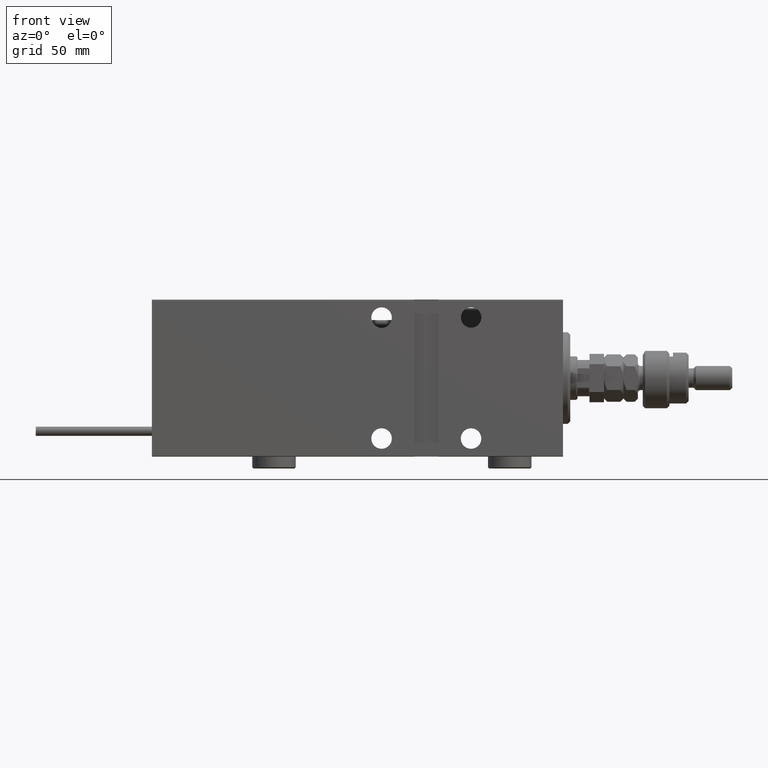
[diagram: clean part render]
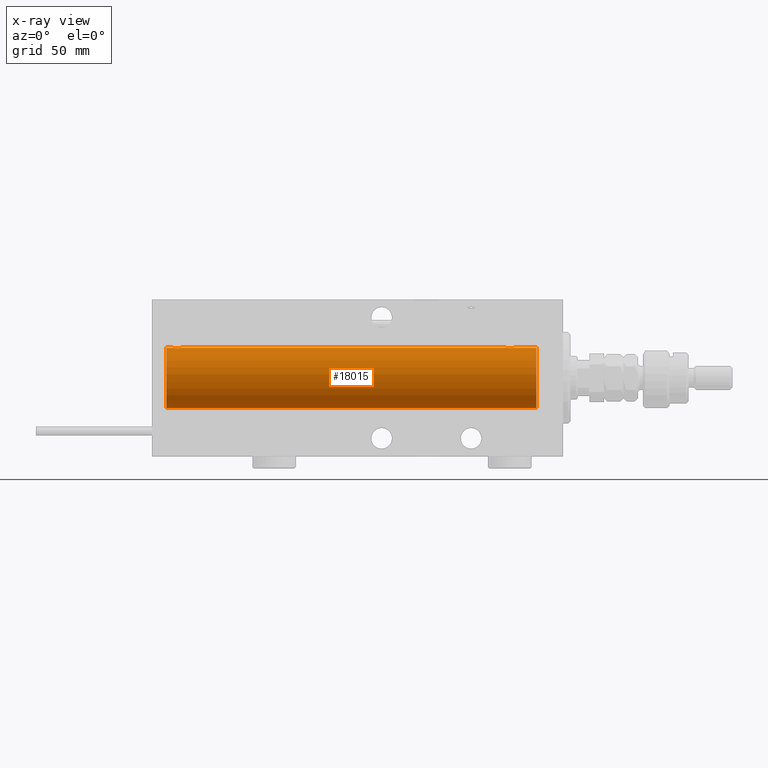
[diagram: x-ray — body ghosted, one internal face saturated and labeled with its STEP entity id]
A machine part, front view, then the same camera in x-ray: the body is ghosted and one INTERNAL B-rep face — a face not visible from any outside direction — is saturated and labeled: STEP entity #18015.
In plain terms, the highlighted cylindrical surface (edge-blend (fillet) strip) has radius 12.5 mm, axis along (1, 0, -0).
Its self-contained STEP definition (entity closure, byte-faithful):
#72 = CARTESIAN_POINT ( 'NONE',  ( 164.0000000000000000, 1.530808498934191521E-15, -12.50000000000000000 ) ) ;
#193 = CARTESIAN_POINT ( 'NONE',  ( 161.0903668000940741, 1.219754986802276342, 12.44082361696004035 ) ) ;
#1262 = CARTESIAN_POINT ( 'NONE',  ( 157.5000000000000000, -7.266434456262306043E-23, 12.50000000000000000 ) ) ;
#2262 = VECTOR ( 'NONE', #20187, 1000.000000000000000 ) ;
#2505 = CARTESIAN_POINT ( 'NONE',  ( 23.89747729701804957, 0.6455696738844942661, 12.48390768591463207 ) ) ;
#2512 = DIRECTION ( 'NONE',  ( 0.000000000000000000, 0.000000000000000000, 1.000000000000000000 ) ) ;
#2643 = CARTESIAN_POINT ( 'NONE',  ( 161.5000000000000000, 3.161822422844574965E-15, 12.50000000000000000 ) ) ;
#2758 = CARTESIAN_POINT ( 'NONE',  ( 20.10226968606341202, 0.6448065707252997880, 12.48394649977302073 ) ) ;
#3030 = CARTESIAN_POINT ( 'NONE',  ( 19.99999999999999645, -7.265724481447607133E-23, 12.50000000000000000 ) ) ;
#3175 = ORIENTED_EDGE ( 'NONE', *, *, #4537, .F. ) ;
#3749 = ORIENTED_EDGE ( 'NONE', *, *, #53599, .T. ) ;
#4425 = EDGE_CURVE ( 'NONE', #31412, #18435, #16465, .T. ) ;
#4533 = DIRECTION ( 'NONE',  ( 0.000000000000000000, 0.000000000000000000, 1.000000000000000000 ) ) ;
#4537 = EDGE_CURVE ( 'NONE', #30247, #47169, #36794, .T. ) ;
#4793 = CARTESIAN_POINT ( 'NONE',  ( 157.7025750808384146, 0.8868029758979328880, 12.46909283808506075 ) ) ;
#5063 = CARTESIAN_POINT ( 'NONE',  ( 157.5000000000000000, 0.1306394121199362379, 12.49999999999999822 ) ) ;
#5756 = CARTESIAN_POINT ( 'NONE',  ( 23.50601633672791380, 1.322451657002079450, 12.43019346654085133 ) ) ;
#6374 = ORIENTED_EDGE ( 'NONE', *, *, #16135, .F. ) ;
#6835 = CARTESIAN_POINT ( 'NONE',  ( 20.20257508083844300, 0.8868029758979374400, 12.46909283808506252 ) ) ;
#7098 = CARTESIAN_POINT ( 'NONE',  ( 20.67897166499301775, 1.507394620545638997, 12.40913174964213717 ) ) ;
#7368 = CARTESIAN_POINT ( 'NONE',  ( 21.35584766229707654, 1.897967064543088389, 12.35517291625592406 ) ) ;
#9524 = VECTOR ( 'NONE', #24651, 1000.000000000000000 ) ;
#9562 = CARTESIAN_POINT ( 'NONE',  ( 23.22966493873148863, 1.598680238462371284, 12.39873273758732175 ) ) ;
#9825 = CARTESIAN_POINT ( 'NONE',  ( 21.87007370639734205, 2.000049200055400433, 12.33895470450622867 ) ) ;
#10872 = CARTESIAN_POINT ( 'NONE',  ( 161.4869879148365044, 0.2624928479599930031, 12.49789934882883458 ) ) ;
#11112 = VERTEX_POINT ( 'NONE', #14630 ) ;
#11435 = CARTESIAN_POINT ( 'NONE',  ( 21.11343686466983982, 1.797558627508994533, 12.37018026341338484 ) ) ;
#11701 = CARTESIAN_POINT ( 'NONE',  ( 20.26529257602388867, 1.003863686549170353, 12.46009879577771429 ) ) ;
#12201 = AXIS2_PLACEMENT_3D ( 'NONE', #41740, #45828, #4533 ) ;
#12281 = CARTESIAN_POINT ( 'NONE',  ( 24.00000000000000000, -2.019790789754703983E-15, 12.50000000000000000 ) ) ;
#12295 = LINE ( 'NONE', #45446, #2262 ) ;
#12772 = VERTEX_POINT ( 'NONE', #12281 ) ;
#12931 = CARTESIAN_POINT ( 'NONE',  ( 157.7652925760238816, 1.003863686549162582, 12.46009879577771251 ) ) ;
#13197 = CARTESIAN_POINT ( 'NONE',  ( 158.4966418570081430, 1.734998657226758612, 12.37922086519035503 ) ) ;
#13629 = CARTESIAN_POINT ( 'NONE',  ( 23.59036680009405629, 1.219754986802283003, 12.44082361696003858 ) ) ;
#13735 = CARTESIAN_POINT ( 'NONE',  ( 158.8558476622970659, 1.897967064543079729, 12.35517291625592584 ) ) ;
#14630 = CARTESIAN_POINT ( 'NONE',  ( 11.00000000000001066, 1.530808498934191521E-15, -12.50000000000000000 ) ) ;
#14938 = CARTESIAN_POINT ( 'NONE',  ( 161.2355325543813365, 1.002494658017152984, 12.46021263690096958 ) ) ;
#15510 = CARTESIAN_POINT ( 'NONE',  ( 20.00000000000000000, 0.1306394121199368485, 12.50000000000000178 ) ) ;
#15517 = DIRECTION ( 'NONE',  ( -1.000000000000000000, -0.000000000000000000, -0.000000000000000000 ) ) ;
#15776 = CARTESIAN_POINT ( 'NONE',  ( 20.49266449635678100, 1.321095788880536137, 12.43034574091278266 ) ) ;
#15937 = ORIENTED_EDGE ( 'NONE', *, *, #4425, .T. ) ;
#16135 = EDGE_CURVE ( 'NONE', #47169, #11112, #41549, .T. ) ;
#16465 = B_SPLINE_CURVE_WITH_KNOTS ( 'NONE', 3,
 ( #32794, #16746, #10872, #52184, #53737, #28993, #14938, #193, #33325, #49911, #28195, #44752, #30059, #30585, #46336, #50177, #13735, #33593, #13197, #25730, #26243, #26517, #42269, #12931, #4793, #30324, #46872, #51241, #5063, #1262 ),
 .UNSPECIFIED., .F., .F.,
 ( 4, 2, 2, 2, 2, 2, 2, 2, 2, 2, 2, 2, 2, 2, 4 ),
 ( 3.071950061688775313E-18, 0.0003914362731607417992, 0.0007828725463214804541, 0.001174308819482218838, 0.001565745092642957005, 0.002348617638964492320, 0.003131490185286028068, 0.003522926458446796159, 0.003914362731607563817, 0.004305799004768332341, 0.004697235277929099999, 0.005088671551089867656, 0.005480107824250636181, 0.005871544097411402971, 0.006262980370572171496 ),
 .UNSPECIFIED. ) ;
#16542 = CIRCLE ( 'NONE', #12201, 12.50000000000000000 ) ;
#16746 = CARTESIAN_POINT ( 'NONE',  ( 161.5000000000000000, 0.1323736289504352515, 12.49999999999999822 ) ) ;
#17016 = LINE ( 'NONE', #49370, #9524 ) ;
#17573 = ORIENTED_EDGE ( 'NONE', *, *, #27366, .T. ) ;
#18015 = ADVANCED_FACE ( 'NONE', ( #48663 ), #48397, .F. ) ;
#18435 = VERTEX_POINT ( 'NONE', #30441 ) ;
#19046 = CARTESIAN_POINT ( 'NONE',  ( 23.73553255438137555, 1.002494658017160090, 12.46021263690097491 ) ) ;
#19363 = VERTEX_POINT ( 'NONE', #30251 ) ;
#20123 = CARTESIAN_POINT ( 'NONE',  ( 21.48062649148445047, 1.935814255713572019, 12.34922241902463469 ) ) ;
#20187 = DIRECTION ( 'NONE',  ( -1.000000000000000000, -0.000000000000000000, -0.000000000000000000 ) ) ;
#23793 = DIRECTION ( 'NONE',  ( -1.000000000000000000, 0.000000000000000000, 0.000000000000000000 ) ) ;
#24593 = EDGE_CURVE ( 'NONE', #18435, #12772, #12295, .T. ) ;
#24651 = DIRECTION ( 'NONE',  ( -1.000000000000000000, -0.000000000000000000, -0.000000000000000000 ) ) ;
#25730 = CARTESIAN_POINT ( 'NONE',  ( 158.2801920940542004, 1.590288205413967093, 12.39864157855465088 ) ) ;
#26243 = CARTESIAN_POINT ( 'NONE',  ( 158.1789716649930426, 1.507394620545631003, 12.40913174964213361 ) ) ;
#26517 = CARTESIAN_POINT ( 'NONE',  ( 157.9926644963567526, 1.321095788880528810, 12.43034574091277911 ) ) ;
#27366 = EDGE_CURVE ( 'NONE', #12772, #47874, #45395, .T. ) ;
#28195 = CARTESIAN_POINT ( 'NONE',  ( 160.5068312044749916, 1.747608771958137464, 12.37764291807175532 ) ) ;
#28993 = CARTESIAN_POINT ( 'NONE',  ( 161.2969921162861624, 0.8876934327478085418, 12.46903010196599482 ) ) ;
#30059 = CARTESIAN_POINT ( 'NONE',  ( 159.7621180633162226, 1.999901172190668985, 12.33897869807161207 ) ) ;
#30219 = CARTESIAN_POINT ( 'NONE',  ( 23.00683120447498808, 1.747608771958142793, 12.37764291807175709 ) ) ;
#30247 = VERTEX_POINT ( 'NONE', #53762 ) ;
#30251 = CARTESIAN_POINT ( 'NONE',  ( 11.00000000000001066, 0.000000000000000000, 12.50000000000000000 ) ) ;
#30324 = CARTESIAN_POINT ( 'NONE',  ( 157.6022696860634653, 0.6448065707252982337, 12.48394649977302251 ) ) ;
#30441 = CARTESIAN_POINT ( 'NONE',  ( 157.5000000000000000, -7.266434456262306043E-23, 12.50000000000000000 ) ) ;
#30481 = CARTESIAN_POINT ( 'NONE',  ( 23.79699211628617661, 0.8876934327478163134, 12.46903010196599837 ) ) ;
#30585 = CARTESIAN_POINT ( 'NONE',  ( 159.3700737063973349, 2.000049200055393772, 12.33895470450622867 ) ) ;
#31322 = CARTESIAN_POINT ( 'NONE',  ( 19.99999999999999645, -7.265724481447607133E-23, 12.50000000000000000 ) ) ;
#31346 = CARTESIAN_POINT ( 'NONE',  ( 164.0000000000000000, 0.000000000000000000, 12.50000000000000000 ) ) ;
#31412 = VERTEX_POINT ( 'NONE', #2643 ) ;
#31552 = CARTESIAN_POINT ( 'NONE',  ( 20.01309615233744665, 0.2633501011236107914, 12.49788564268284041 ) ) ;
#31823 = CARTESIAN_POINT ( 'NONE',  ( 20.41008591319372201, 1.220297236145719610, 12.44076681548080465 ) ) ;
#32794 = CARTESIAN_POINT ( 'NONE',  ( 161.5000000000000000, 3.161822422844574965E-15, 12.50000000000000000 ) ) ;
#33325 = CARTESIAN_POINT ( 'NONE',  ( 161.0060163367279245, 1.322451657002077452, 12.43019346654085666 ) ) ;
#33593 = CARTESIAN_POINT ( 'NONE',  ( 158.6134368646698363, 1.797558627508984319, 12.37018026341339194 ) ) ;
#34548 = CARTESIAN_POINT ( 'NONE',  ( 23.93604351777362993, 0.5184196815546091575, 12.48990118705761709 ) ) ;
#35882 = ORIENTED_EDGE ( 'NONE', *, *, #36247, .T. ) ;
#36247 = EDGE_CURVE ( 'NONE', #30247, #31412, #17016, .T. ) ;
#36268 = DIRECTION ( 'NONE',  ( 0.000000000000000000, 0.000000000000000000, 1.000000000000000000 ) ) ;
#36281 = VECTOR ( 'NONE', #37481, 1000.000000000000000 ) ;
#36794 = CIRCLE ( 'NONE', #50691, 12.50000000000000000 ) ;
#37080 = CARTESIAN_POINT ( 'NONE',  ( 164.0000000000000000, 0.000000000000000000, 0.000000000000000000 ) ) ;
#37481 = DIRECTION ( 'NONE',  ( -1.000000000000000000, -0.000000000000000000, -0.000000000000000000 ) ) ;
#37750 = ORIENTED_EDGE ( 'NONE', *, *, #24593, .T. ) ;
#38019 = CARTESIAN_POINT ( 'NONE',  ( 164.0000000000000000, 1.530808498934191521E-15, -12.50000000000000000 ) ) ;
#38891 = CARTESIAN_POINT ( 'NONE',  ( 21.73730537545401731, 1.986986967296538120, 12.34109209020652642 ) ) ;
#39421 = CARTESIAN_POINT ( 'NONE',  ( 23.99999999999999645, 0.1323736289504348906, 12.50000000000000000 ) ) ;
#39698 = CARTESIAN_POINT ( 'NONE',  ( 24.00000000000000000, -2.019790789754703983E-15, 12.50000000000000000 ) ) ;
#39705 = CARTESIAN_POINT ( 'NONE',  ( 164.0000000000000000, 0.000000000000000000, 0.000000000000000000 ) ) ;
#40222 = CARTESIAN_POINT ( 'NONE',  ( 20.78019209405420042, 1.590288205413970646, 12.39864157855464910 ) ) ;
#41549 = LINE ( 'NONE', #38019, #36281 ) ;
#41740 = CARTESIAN_POINT ( 'NONE',  ( 11.00000000000001066, 0.000000000000000000, 0.000000000000000000 ) ) ;
#42269 = CARTESIAN_POINT ( 'NONE',  ( 157.9100859131936829, 1.220297236145710063, 12.44076681548080288 ) ) ;
#42397 = AXIS2_PLACEMENT_3D ( 'NONE', #39705, #15517, #2512 ) ;
#44308 = CARTESIAN_POINT ( 'NONE',  ( 20.99664185700817853, 1.734998657226762830, 12.37922086519035680 ) ) ;
#44752 = CARTESIAN_POINT ( 'NONE',  ( 160.0256358717048784, 1.947190906025039192, 12.34781876294798941 ) ) ;
#45395 = B_SPLINE_CURVE_WITH_KNOTS ( 'NONE', 3,
 ( #39698, #39421, #47850, #34548, #2505, #30481, #19046, #13629, #5756, #9562, #30219, #46765, #47033, #9825, #38891, #20123, #7368, #11435, #44308, #40222, #7098, #15776, #31823, #11701, #6835, #2758, #48390, #31552, #15510, #3030 ),
 .UNSPECIFIED., .F., .F.,
 ( 4, 2, 2, 2, 2, 2, 2, 2, 2, 2, 2, 2, 2, 2, 4 ),
 ( 3.101773669235365923E-18, 0.0003914362731607605559, 0.0007828725463215181844, 0.001174308819482275650, 0.001565745092643033550, 0.002348617638964548265, 0.003131490185286063196, 0.003522926458446825216, 0.003914362731607588103, 0.004305799004768350556, 0.004697235277929112142, 0.005088671551089875462, 0.005480107824250637048, 0.005871544097411400369, 0.006262980370572162822 ),
 .UNSPECIFIED. ) ;
#45446 = CARTESIAN_POINT ( 'NONE',  ( 164.0000000000000000, 0.000000000000000000, 12.50000000000000000 ) ) ;
#45828 = DIRECTION ( 'NONE',  ( -1.000000000000000000, 0.000000000000000000, 0.000000000000000000 ) ) ;
#46319 = VECTOR ( 'NONE', #47905, 1000.000000000000000 ) ;
#46336 = CARTESIAN_POINT ( 'NONE',  ( 159.2373053754539569, 1.986986967296530793, 12.34109209020652820 ) ) ;
#46765 = CARTESIAN_POINT ( 'NONE',  ( 22.52563587170489612, 1.947190906025044521, 12.34781876294798586 ) ) ;
#46872 = CARTESIAN_POINT ( 'NONE',  ( 157.5643822547814921, 0.5201193324741391066, 12.48983485452574982 ) ) ;
#47033 = CARTESIAN_POINT ( 'NONE',  ( 22.26211806331625098, 1.999901172190677201, 12.33897869807161563 ) ) ;
#47169 = VERTEX_POINT ( 'NONE', #72 ) ;
#47477 = EDGE_CURVE ( 'NONE', #19363, #11112, #16542, .T. ) ;
#47850 = CARTESIAN_POINT ( 'NONE',  ( 23.98698791483651149, 0.2624928479599948905, 12.49789934882883458 ) ) ;
#47874 = VERTEX_POINT ( 'NONE', #31322 ) ;
#47905 = DIRECTION ( 'NONE',  ( -1.000000000000000000, -0.000000000000000000, -0.000000000000000000 ) ) ;
#48390 = CARTESIAN_POINT ( 'NONE',  ( 20.06438225478150272, 0.5201193324741336665, 12.48983485452574982 ) ) ;
#48397 = CYLINDRICAL_SURFACE ( 'NONE', #42397, 12.50000000000000000 ) ;
#48663 = FACE_OUTER_BOUND ( 'NONE', #53359, .T. ) ;
#49370 = CARTESIAN_POINT ( 'NONE',  ( 164.0000000000000000, 0.000000000000000000, 12.50000000000000000 ) ) ;
#49911 = CARTESIAN_POINT ( 'NONE',  ( 160.7296649387314460, 1.598680238462367287, 12.39873273758732175 ) ) ;
#50177 = CARTESIAN_POINT ( 'NONE',  ( 158.9806264914844860, 1.935814255713564913, 12.34922241902463647 ) ) ;
#50691 = AXIS2_PLACEMENT_3D ( 'NONE', #37080, #23793, #36268 ) ;
#51241 = CARTESIAN_POINT ( 'NONE',  ( 157.5130961523374822, 0.2633501011236185629, 12.49788564268283864 ) ) ;
#51998 = LINE ( 'NONE', #31346, #46319 ) ;
#52141 = ORIENTED_EDGE ( 'NONE', *, *, #47477, .T. ) ;
#52184 = CARTESIAN_POINT ( 'NONE',  ( 161.4360435177736690, 0.5184196815546076031, 12.48990118705761532 ) ) ;
#53359 = EDGE_LOOP ( 'NONE', ( #6374, #3175, #35882, #15937, #37750, #17573, #3749, #52141 ) ) ;
#53599 = EDGE_CURVE ( 'NONE', #47874, #19363, #51998, .T. ) ;
#53737 = CARTESIAN_POINT ( 'NONE',  ( 161.3974772970180425, 0.6455696738844871607, 12.48390768591463207 ) ) ;
#53762 = CARTESIAN_POINT ( 'NONE',  ( 164.0000000000000000, 0.000000000000000000, 12.50000000000000000 ) ) ;